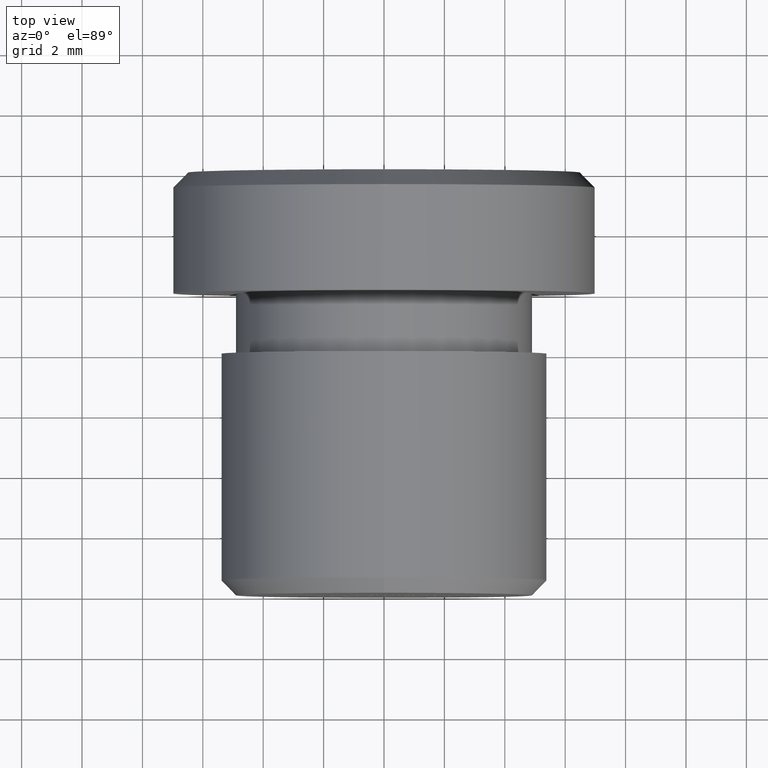
[diagram: clean part render]
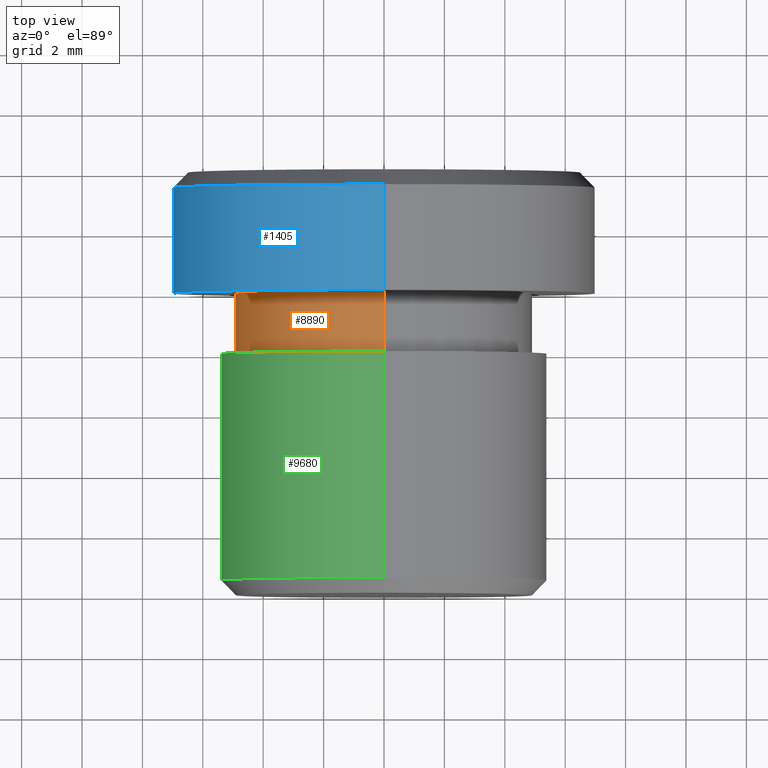
[diagram: same view with three faces highlighted in distinct colors, each labeled with its STEP entity id]
A machine part, top view with three faces highlighted in distinct colors.
Their STEP definitions:

[orange] entity #8890 — the highlighted cylindrical surface (partial cylindrical patch) has radius 4.9 mm, axis along (-0, 1, -0).
#11 = AXIS2_PLACEMENT_3D ( 'NONE', #2691, #544, #6001 ) ;
#544 = DIRECTION ( 'NONE',  ( -0.0000000000000000000, 1.000000000000000000, -0.0000000000000000000 ) ) ;
#828 = EDGE_CURVE ( 'NONE', #1406, #847, #6188, .T. ) ;
#847 = VERTEX_POINT ( 'NONE', #2561 ) ;
#1115 = CARTESIAN_POINT ( 'NONE',  ( 0.0000000000000000000, 10.00000000000000000, 4.899999999999999500 ) ) ;
#1406 = VERTEX_POINT ( 'NONE', #3209 ) ;
#1874 = VERTEX_POINT ( 'NONE', #13081 ) ;
#2203 = DIRECTION ( 'NONE',  ( -0.0000000000000000000, 1.000000000000000000, -0.0000000000000000000 ) ) ;
#2418 = CYLINDRICAL_SURFACE ( 'NONE', #11, 4.899999999999999500 ) ;
#2561 = CARTESIAN_POINT ( 'NONE',  ( 6.000769315822030700E-016, 10.00000000000000000, -4.899999999999999500 ) ) ;
#2625 = DIRECTION ( 'NONE',  ( -0.0000000000000000000, 1.000000000000000000, -0.0000000000000000000 ) ) ;
#2651 = DIRECTION ( 'NONE',  ( -0.0000000000000000000, 1.000000000000000000, -0.0000000000000000000 ) ) ;
#2691 = CARTESIAN_POINT ( 'NONE',  ( 0.0000000000000000000, 10.00000000000000000, 0.0000000000000000000 ) ) ;
#2752 = FACE_OUTER_BOUND ( 'NONE', #9517, .T. ) ;
#3209 = CARTESIAN_POINT ( 'NONE',  ( 6.000769315822030700E-016, 8.000000000000000000, -4.899999999999999500 ) ) ;
#3510 = ORIENTED_EDGE ( 'NONE', *, *, #7641, .F. ) ;
#3923 = AXIS2_PLACEMENT_3D ( 'NONE', #13368, #2203, #12176 ) ;
#4027 = VECTOR ( 'NONE', #10559, 1000.000000000000000 ) ;
#4650 = CARTESIAN_POINT ( 'NONE',  ( 6.000769315822030700E-016, 10.00000000000000000, -4.899999999999999500 ) ) ;
#5841 = EDGE_CURVE ( 'NONE', #1874, #5971, #11108, .T. ) ;
#5898 = CARTESIAN_POINT ( 'NONE',  ( 0.0000000000000000000, 8.000000000000000000, 0.0000000000000000000 ) ) ;
#5971 = VERTEX_POINT ( 'NONE', #1115 ) ;
#6001 = DIRECTION ( 'NONE',  ( 0.0000000000000000000, 0.0000000000000000000, 1.000000000000000000 ) ) ;
#6082 = CARTESIAN_POINT ( 'NONE',  ( 0.0000000000000000000, 10.00000000000000000, 4.899999999999999500 ) ) ;
#6188 = LINE ( 'NONE', #4650, #11362 ) ;
#6898 = ORIENTED_EDGE ( 'NONE', *, *, #5841, .T. ) ;
#7100 = ORIENTED_EDGE ( 'NONE', *, *, #828, .F. ) ;
#7641 = EDGE_CURVE ( 'NONE', #847, #5971, #14336, .T. ) ;
#7881 = ORIENTED_EDGE ( 'NONE', *, *, #7965, .T. ) ;
#7965 = EDGE_CURVE ( 'NONE', #1406, #1874, #12782, .T. ) ;
#8066 = DIRECTION ( 'NONE',  ( 0.0000000000000000000, 0.0000000000000000000, 1.000000000000000000 ) ) ;
#8890 = ADVANCED_FACE ( 'NONE', ( #2752 ), #2418, .T. ) ;
#9517 = EDGE_LOOP ( 'NONE', ( #7100, #7881, #6898, #3510 ) ) ;
#10028 = AXIS2_PLACEMENT_3D ( 'NONE', #5898, #2625, #8066 ) ;
#10559 = DIRECTION ( 'NONE',  ( -0.0000000000000000000, 1.000000000000000000, -0.0000000000000000000 ) ) ;
#11108 = LINE ( 'NONE', #6082, #4027 ) ;
#11362 = VECTOR ( 'NONE', #2651, 1000.000000000000000 ) ;
#12176 = DIRECTION ( 'NONE',  ( 0.0000000000000000000, 0.0000000000000000000, 1.000000000000000000 ) ) ;
#12782 = CIRCLE ( 'NONE', #10028, 4.899999999999999500 ) ;
#13081 = CARTESIAN_POINT ( 'NONE',  ( 0.0000000000000000000, 8.000000000000000000, 4.899999999999999500 ) ) ;
#13368 = CARTESIAN_POINT ( 'NONE',  ( 0.0000000000000000000, 10.00000000000000000, 0.0000000000000000000 ) ) ;
#14336 = CIRCLE ( 'NONE', #3923, 4.899999999999999500 ) ;

[blue] entity #1405 — the highlighted cylindrical surface (partial cylindrical patch) has radius 7 mm, axis along (-0, -1, -0).
#370 = ORIENTED_EDGE ( 'NONE', *, *, #1450, .T. ) ;
#383 = VECTOR ( 'NONE', #4968, 1000.000000000000000 ) ;
#1120 = FACE_OUTER_BOUND ( 'NONE', #10152, .T. ) ;
#1405 = ADVANCED_FACE ( 'NONE', ( #1120 ), #4640, .T. ) ;
#1450 = EDGE_CURVE ( 'NONE', #10281, #11961, #13248, .T. ) ;
#1608 = ORIENTED_EDGE ( 'NONE', *, *, #11853, .T. ) ;
#2026 = CARTESIAN_POINT ( 'NONE',  ( 0.0000000000000000000, 0.0000000000000000000, 0.0000000000000000000 ) ) ;
#2123 = DIRECTION ( 'NONE',  ( -0.0000000000000000000, -1.000000000000000000, -0.0000000000000000000 ) ) ;
#3175 = CARTESIAN_POINT ( 'NONE',  ( 0.0000000000000000000, 13.49999999999999500, -7.000000000000000900 ) ) ;
#3345 = EDGE_CURVE ( 'NONE', #13067, #9234, #13870, .T. ) ;
#3757 = VECTOR ( 'NONE', #2123, 1000.000000000000000 ) ;
#4640 = CYLINDRICAL_SURFACE ( 'NONE', #5171, 7.000000000000000900 ) ;
#4968 = DIRECTION ( 'NONE',  ( -0.0000000000000000000, -1.000000000000000000, -0.0000000000000000000 ) ) ;
#5171 = AXIS2_PLACEMENT_3D ( 'NONE', #2026, #13098, #9821 ) ;
#5325 = CARTESIAN_POINT ( 'NONE',  ( 0.0000000000000000000, 13.49999999999999500, 0.0000000000000000000 ) ) ;
#5620 = CARTESIAN_POINT ( 'NONE',  ( 8.572527594031474200E-016, 13.49999999999999500, 7.000000000000000900 ) ) ;
#5659 = DIRECTION ( 'NONE',  ( 0.0000000000000000000, 0.0000000000000000000, -1.000000000000000000 ) ) ;
#5903 = EDGE_CURVE ( 'NONE', #9234, #11961, #6955, .T. ) ;
#5945 = AXIS2_PLACEMENT_3D ( 'NONE', #11053, #12125, #5659 ) ;
#6154 = AXIS2_PLACEMENT_3D ( 'NONE', #5325, #6433, #6381 ) ;
#6381 = DIRECTION ( 'NONE',  ( 0.0000000000000000000, 0.0000000000000000000, 1.000000000000000000 ) ) ;
#6433 = DIRECTION ( 'NONE',  ( -0.0000000000000000000, -1.000000000000000000, -0.0000000000000000000 ) ) ;
#6689 = ORIENTED_EDGE ( 'NONE', *, *, #5903, .F. ) ;
#6955 = CIRCLE ( 'NONE', #5945, 7.000000000000000000 ) ;
#9234 = VERTEX_POINT ( 'NONE', #11727 ) ;
#9821 = DIRECTION ( 'NONE',  ( 0.0000000000000000000, 0.0000000000000000000, -1.000000000000000000 ) ) ;
#10152 = EDGE_LOOP ( 'NONE', ( #12548, #1608, #370, #6689 ) ) ;
#10281 = VERTEX_POINT ( 'NONE', #3175 ) ;
#10288 = CARTESIAN_POINT ( 'NONE',  ( 0.0000000000000000000, 10.00000000000000200, -7.000000000000000000 ) ) ;
#11053 = CARTESIAN_POINT ( 'NONE',  ( 0.0000000000000000000, 10.00000000000000200, 0.0000000000000000000 ) ) ;
#11727 = CARTESIAN_POINT ( 'NONE',  ( 8.572527594031473200E-016, 10.00000000000000200, 7.000000000000000000 ) ) ;
#11853 = EDGE_CURVE ( 'NONE', #13067, #10281, #12588, .T. ) ;
#11961 = VERTEX_POINT ( 'NONE', #10288 ) ;
#12125 = DIRECTION ( 'NONE',  ( -0.0000000000000000000, -1.000000000000000000, -0.0000000000000000000 ) ) ;
#12548 = ORIENTED_EDGE ( 'NONE', *, *, #3345, .F. ) ;
#12588 = CIRCLE ( 'NONE', #6154, 7.000000000000000900 ) ;
#13067 = VERTEX_POINT ( 'NONE', #5620 ) ;
#13098 = DIRECTION ( 'NONE',  ( -0.0000000000000000000, -1.000000000000000000, -0.0000000000000000000 ) ) ;
#13248 = LINE ( 'NONE', #14223, #3757 ) ;
#13667 = CARTESIAN_POINT ( 'NONE',  ( 8.572527594031474200E-016, 0.0000000000000000000, 7.000000000000000900 ) ) ;
#13870 = LINE ( 'NONE', #13667, #383 ) ;
#14223 = CARTESIAN_POINT ( 'NONE',  ( 0.0000000000000000000, 0.0000000000000000000, -7.000000000000000900 ) ) ;

[green] entity #9680 — the highlighted cylindrical surface (partial cylindrical patch) has radius 5.4 mm, axis along (-0, -1, -0).
#798 = DIRECTION ( 'NONE',  ( -0.0000000000000000000, 1.000000000000000000, -0.0000000000000000000 ) ) ;
#1062 = DIRECTION ( 'NONE',  ( -0.0000000000000000000, -1.000000000000000000, -0.0000000000000000000 ) ) ;
#1606 = CARTESIAN_POINT ( 'NONE',  ( 6.613092715395706500E-016, 0.5000000000000030000, 5.399999999999999500 ) ) ;
#1887 = VECTOR ( 'NONE', #1062, 1000.000000000000000 ) ;
#2010 = EDGE_LOOP ( 'NONE', ( #5824, #2138, #5598, #3092 ) ) ;
#2138 = ORIENTED_EDGE ( 'NONE', *, *, #7815, .F. ) ;
#2380 = CIRCLE ( 'NONE', #8493, 5.399999999999999500 ) ;
#2450 = CARTESIAN_POINT ( 'NONE',  ( 0.0000000000000000000, 0.5000000000000030000, 0.0000000000000000000 ) ) ;
#3032 = CARTESIAN_POINT ( 'NONE',  ( 0.0000000000000000000, 8.000000000000000000, -5.399999999999998600 ) ) ;
#3092 = ORIENTED_EDGE ( 'NONE', *, *, #13140, .T. ) ;
#4184 = CIRCLE ( 'NONE', #4686, 5.399999999999998600 ) ;
#4187 = EDGE_CURVE ( 'NONE', #9292, #8187, #5103, .T. ) ;
#4358 = CARTESIAN_POINT ( 'NONE',  ( 6.613092715395706500E-016, 0.0000000000000000000, 5.399999999999999500 ) ) ;
#4686 = AXIS2_PLACEMENT_3D ( 'NONE', #7442, #798, #10788 ) ;
#5103 = LINE ( 'NONE', #12676, #5628 ) ;
#5598 = ORIENTED_EDGE ( 'NONE', *, *, #4187, .T. ) ;
#5628 = VECTOR ( 'NONE', #12766, 1000.000000000000000 ) ;
#5754 = VERTEX_POINT ( 'NONE', #1606 ) ;
#5824 = ORIENTED_EDGE ( 'NONE', *, *, #9367, .F. ) ;
#5861 = CARTESIAN_POINT ( 'NONE',  ( 6.613092715395706500E-016, 8.000000000000000000, 5.399999999999998600 ) ) ;
#6241 = LINE ( 'NONE', #4358, #1887 ) ;
#6565 = CARTESIAN_POINT ( 'NONE',  ( 0.0000000000000000000, 0.5000000000000030000, -5.399999999999999500 ) ) ;
#7096 = CARTESIAN_POINT ( 'NONE',  ( 0.0000000000000000000, 0.0000000000000000000, 0.0000000000000000000 ) ) ;
#7442 = CARTESIAN_POINT ( 'NONE',  ( 0.0000000000000000000, 8.000000000000000000, 0.0000000000000000000 ) ) ;
#7815 = EDGE_CURVE ( 'NONE', #9292, #9121, #4184, .T. ) ;
#8171 = DIRECTION ( 'NONE',  ( -0.0000000000000000000, -1.000000000000000000, -0.0000000000000000000 ) ) ;
#8187 = VERTEX_POINT ( 'NONE', #6565 ) ;
#8223 = DIRECTION ( 'NONE',  ( 0.0000000000000000000, 0.0000000000000000000, -1.000000000000000000 ) ) ;
#8493 = AXIS2_PLACEMENT_3D ( 'NONE', #2450, #9210, #10269 ) ;
#9121 = VERTEX_POINT ( 'NONE', #5861 ) ;
#9176 = CYLINDRICAL_SURFACE ( 'NONE', #9747, 5.399999999999999500 ) ;
#9210 = DIRECTION ( 'NONE',  ( 0.0000000000000000000, 1.000000000000000000, 0.0000000000000000000 ) ) ;
#9292 = VERTEX_POINT ( 'NONE', #3032 ) ;
#9367 = EDGE_CURVE ( 'NONE', #9121, #5754, #6241, .T. ) ;
#9680 = ADVANCED_FACE ( 'NONE', ( #10722 ), #9176, .T. ) ;
#9747 = AXIS2_PLACEMENT_3D ( 'NONE', #7096, #8171, #8223 ) ;
#10269 = DIRECTION ( 'NONE',  ( 0.0000000000000000000, 0.0000000000000000000, -1.000000000000000000 ) ) ;
#10722 = FACE_OUTER_BOUND ( 'NONE', #2010, .T. ) ;
#10788 = DIRECTION ( 'NONE',  ( 0.0000000000000000000, 0.0000000000000000000, 1.000000000000000000 ) ) ;
#12676 = CARTESIAN_POINT ( 'NONE',  ( 0.0000000000000000000, 0.0000000000000000000, -5.399999999999999500 ) ) ;
#12766 = DIRECTION ( 'NONE',  ( -0.0000000000000000000, -1.000000000000000000, -0.0000000000000000000 ) ) ;
#13140 = EDGE_CURVE ( 'NONE', #8187, #5754, #2380, .T. ) ;